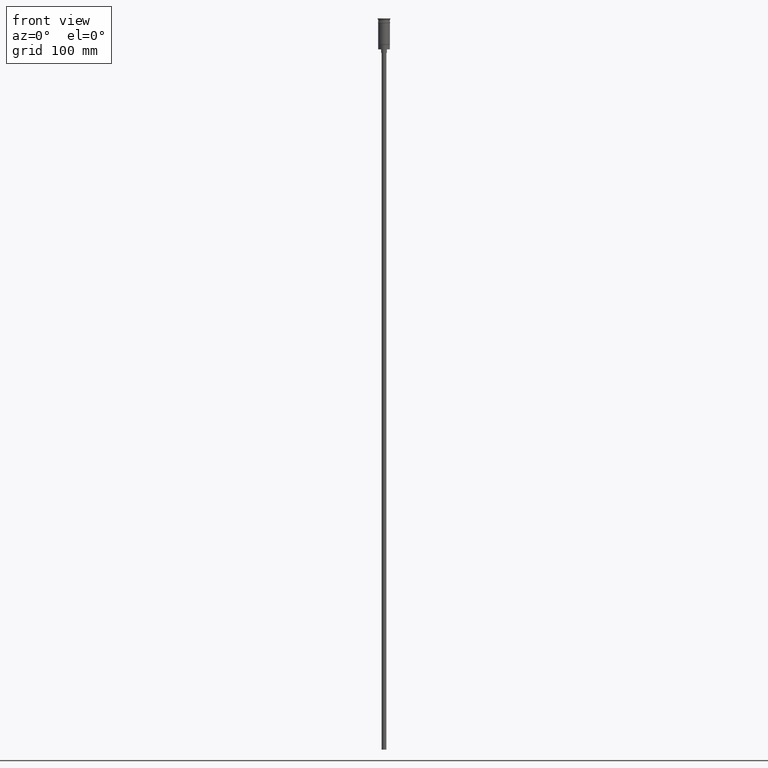
[diagram: clean part render]
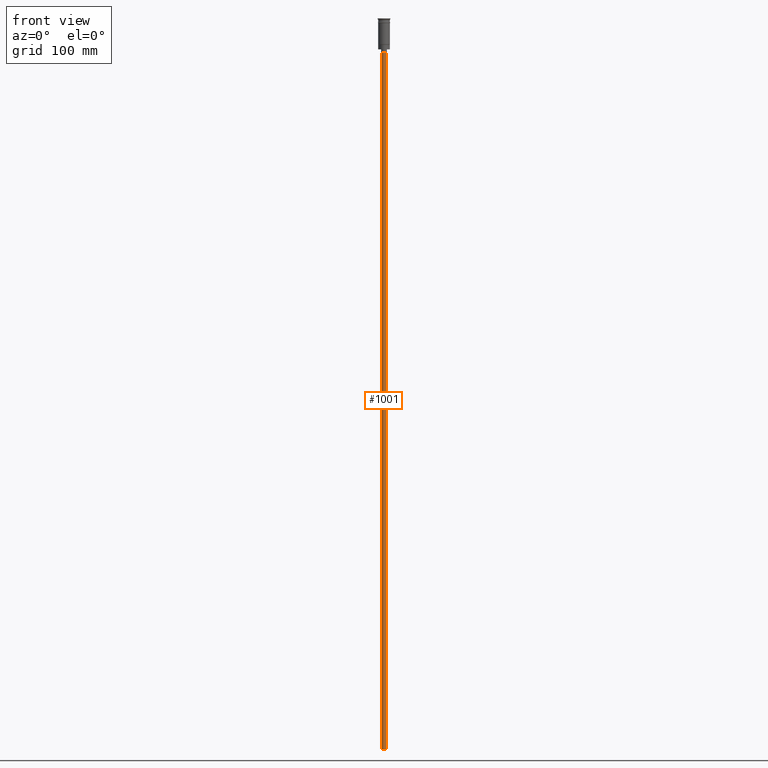
[diagram: same view with one face highlighted and labeled with its STEP entity id]
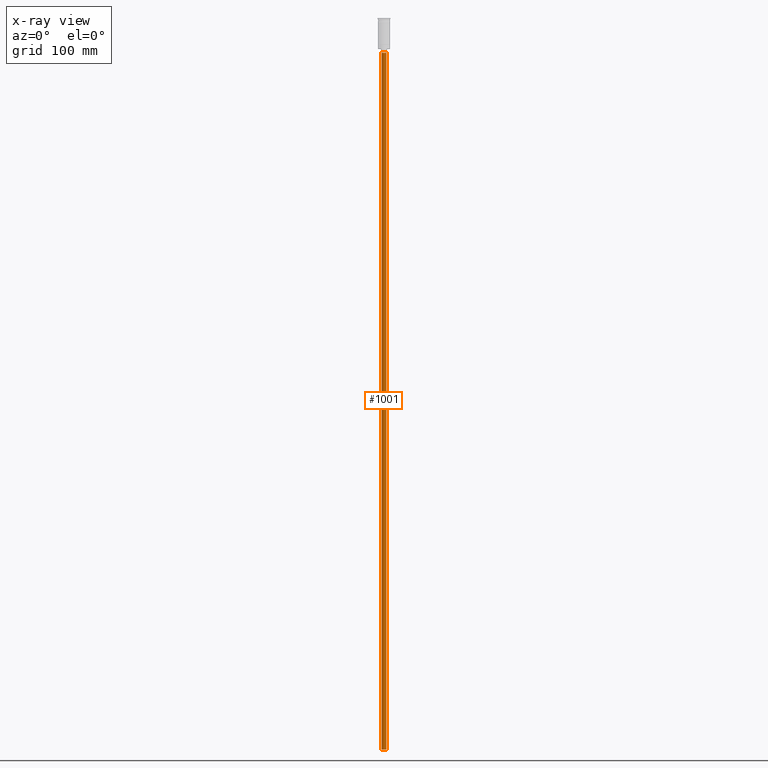
[diagram: x-ray of the same camera — body ghosted, the highlighted face saturated]
A machine part, front view. The second image highlights one B-rep face of the part: STEP entity #1001.
The next image is the same camera in x-ray: the body ghosted, the highlighted face saturated — about 0% of this face is hidden behind the body in this view.
In plain terms, the highlighted cylindrical surface (edge-blend (fillet) strip) has radius 2 mm, axis along (-0, -0, 1).
Its self-contained STEP definition (entity closure, byte-faithful):
#22 = ORIENTED_EDGE ( 'NONE', *, *, #757, .T. ) ;
#34 = DIRECTION ( 'NONE',  ( -0.000000000000000000, -0.000000000000000000, 1.000000000000000000 ) ) ;
#83 = EDGE_CURVE ( 'NONE', #1585, #1209, #152, .T. ) ;
#93 = LINE ( 'NONE', #809, #702 ) ;
#152 = LINE ( 'NONE', #786, #536 ) ;
#163 = DIRECTION ( 'NONE',  ( 1.000000000000000000, 0.000000000000000000, 0.000000000000000000 ) ) ;
#277 = CYLINDRICAL_SURFACE ( 'NONE', #373, 2.000000000000000000 ) ;
#328 = EDGE_LOOP ( 'NONE', ( #1175, #780, #22, #1392 ) ) ;
#373 = AXIS2_PLACEMENT_3D ( 'NONE', #1514, #1269, #163 ) ;
#467 = DIRECTION ( 'NONE',  ( 0.000000000000000000, 0.000000000000000000, -1.000000000000000000 ) ) ;
#517 = FACE_OUTER_BOUND ( 'NONE', #328, .T. ) ;
#531 = CARTESIAN_POINT ( 'NONE',  ( 2.000000000000000000, 0.000000000000000000, -626.5000000000000000 ) ) ;
#536 = VECTOR ( 'NONE', #34, 1000.000000000000000 ) ;
#635 = DIRECTION ( 'NONE',  ( 0.000000000000000000, 0.000000000000000000, -1.000000000000000000 ) ) ;
#702 = VECTOR ( 'NONE', #1298, 1000.000000000000000 ) ;
#728 = VERTEX_POINT ( 'NONE', #1306 ) ;
#730 = CARTESIAN_POINT ( 'NONE',  ( -2.000000000000000000, 2.449293598294706414E-16, -29.50000000000000000 ) ) ;
#753 = DIRECTION ( 'NONE',  ( -1.000000000000000000, 0.000000000000000000, 0.000000000000000000 ) ) ;
#757 = EDGE_CURVE ( 'NONE', #992, #728, #93, .T. ) ;
#780 = ORIENTED_EDGE ( 'NONE', *, *, #1083, .F. ) ;
#786 = CARTESIAN_POINT ( 'NONE',  ( -2.000000000000000000, 2.449293598294706414E-16, -626.5000000000000000 ) ) ;
#809 = CARTESIAN_POINT ( 'NONE',  ( 2.000000000000000000, 0.000000000000000000, -626.5000000000000000 ) ) ;
#864 = EDGE_CURVE ( 'NONE', #728, #1209, #1357, .T. ) ;
#992 = VERTEX_POINT ( 'NONE', #531 ) ;
#1001 = ADVANCED_FACE ( 'NONE', ( #517 ), #277, .T. ) ;
#1067 = DIRECTION ( 'NONE',  ( -1.000000000000000000, 0.000000000000000000, 0.000000000000000000 ) ) ;
#1083 = EDGE_CURVE ( 'NONE', #992, #1585, #1148, .T. ) ;
#1148 = CIRCLE ( 'NONE', #1248, 2.000000000000000000 ) ;
#1175 = ORIENTED_EDGE ( 'NONE', *, *, #83, .F. ) ;
#1189 = CARTESIAN_POINT ( 'NONE',  ( 0.000000000000000000, 0.000000000000000000, -626.5000000000000000 ) ) ;
#1192 = CARTESIAN_POINT ( 'NONE',  ( -2.000000000000000000, 2.449293598294706414E-16, -626.5000000000000000 ) ) ;
#1209 = VERTEX_POINT ( 'NONE', #730 ) ;
#1248 = AXIS2_PLACEMENT_3D ( 'NONE', #1189, #467, #1067 ) ;
#1269 = DIRECTION ( 'NONE',  ( -0.000000000000000000, -0.000000000000000000, 1.000000000000000000 ) ) ;
#1298 = DIRECTION ( 'NONE',  ( -0.000000000000000000, -0.000000000000000000, 1.000000000000000000 ) ) ;
#1306 = CARTESIAN_POINT ( 'NONE',  ( 2.000000000000000000, 0.000000000000000000, -29.50000000000000000 ) ) ;
#1357 = CIRCLE ( 'NONE', #1558, 2.000000000000000000 ) ;
#1392 = ORIENTED_EDGE ( 'NONE', *, *, #864, .T. ) ;
#1493 = CARTESIAN_POINT ( 'NONE',  ( 0.000000000000000000, 0.000000000000000000, -29.50000000000000000 ) ) ;
#1514 = CARTESIAN_POINT ( 'NONE',  ( 0.000000000000000000, 0.000000000000000000, -626.5000000000000000 ) ) ;
#1558 = AXIS2_PLACEMENT_3D ( 'NONE', #1493, #635, #753 ) ;
#1585 = VERTEX_POINT ( 'NONE', #1192 ) ;